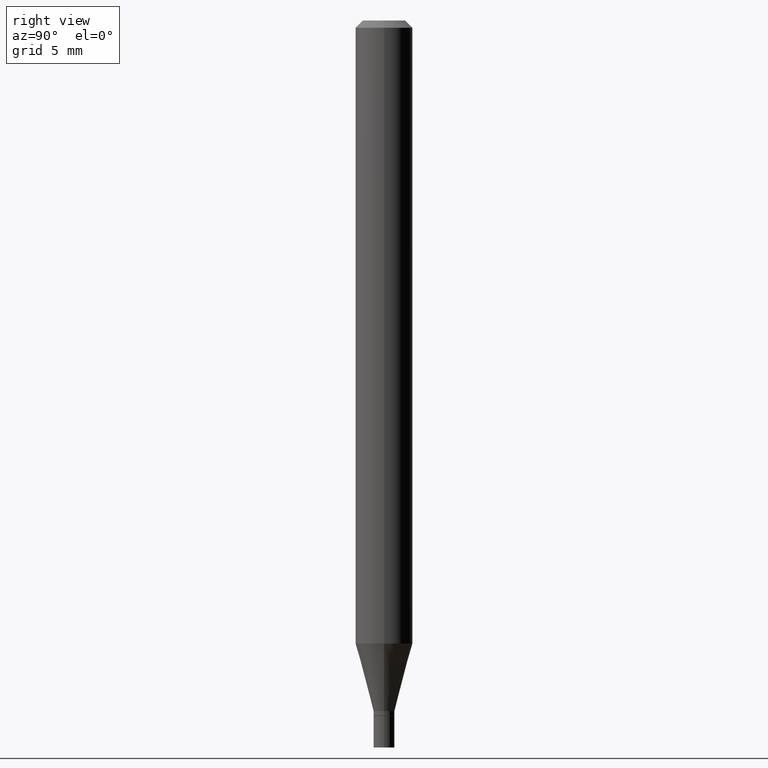
[diagram: clean part render]
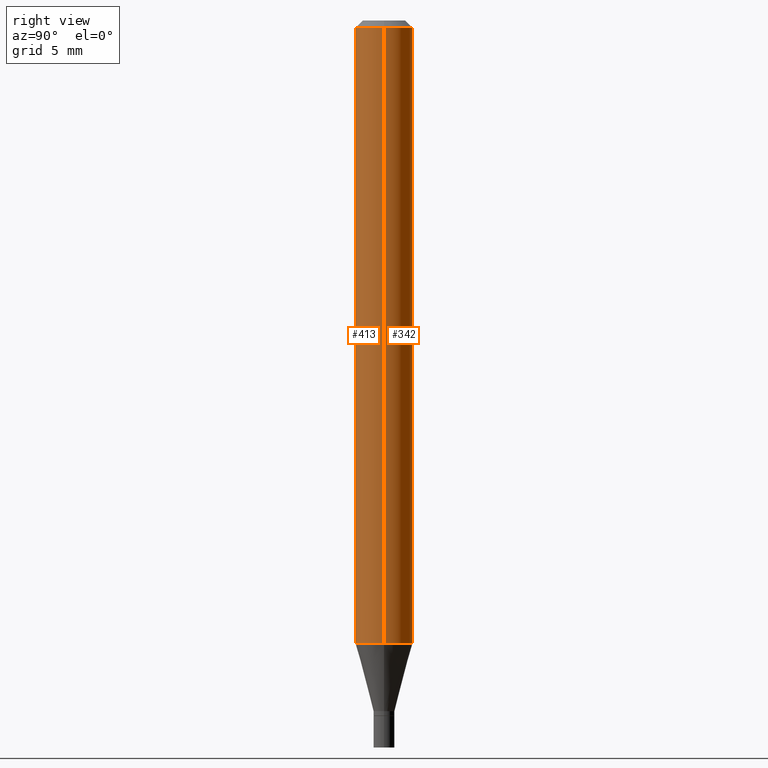
[diagram: same view with one multi-face feature highlighted, each face labeled with its STEP entity id]
A machine part, right view. The highlighted faces form ONE feature: a constant-radius fillet chain: 2 tangent blend faces with common blend radius 1.4999 mm. The faces share edges in the B-rep.
Their STEP definitions:
[1] entity #342 (Cylinder):
#8 = EDGE_CURVE ( 'NONE', #136, #305, #292, .T. ) ;
#10 = ORIENTED_EDGE ( 'NONE', *, *, #8, .F. ) ;
#16 = VECTOR ( 'NONE', #145, 39.37007874015748143 ) ;
#52 = DIRECTION ( 'NONE',  ( 1.000000000000000000, -6.982962677686266711E-15, 0.000000000000000000 ) ) ;
#54 = DIRECTION ( 'NONE',  ( -2.445468806185136877E-29, 3.491481338843145188E-15, 1.000000000000000000 ) ) ;
#61 = CIRCLE ( 'NONE', #319, 0.05904999999999999832 ) ;
#63 = CYLINDRICAL_SURFACE ( 'NONE', #173, 0.05904999999999999832 ) ;
#73 = EDGE_CURVE ( 'NONE', #227, #305, #78, .T. ) ;
#77 = EDGE_CURVE ( 'NONE', #364, #136, #230, .T. ) ;
#78 = LINE ( 'NONE', #371, #414 ) ;
#83 = EDGE_CURVE ( 'NONE', #364, #227, #61, .T. ) ;
#84 = CARTESIAN_POINT ( 'NONE',  ( -0.05904999999999999832, -1.850622864971215216E-15, -0.01499999999999999944 ) ) ;
#92 = ORIENTED_EDGE ( 'NONE', *, *, #83, .T. ) ;
#121 = EDGE_LOOP ( 'NONE', ( #92, #165, #10, #397 ) ) ;
#136 = VERTEX_POINT ( 'NONE', #211 ) ;
#145 = DIRECTION ( 'NONE',  ( -2.445468806185136877E-29, 3.491481338843145188E-15, 1.000000000000000000 ) ) ;
#165 = ORIENTED_EDGE ( 'NONE', *, *, #73, .T. ) ;
#171 = CARTESIAN_POINT ( 'NONE',  ( 0.000000000000000000, 0.000000000000000000, 0.000000000000000000 ) ) ;
#173 = AXIS2_PLACEMENT_3D ( 'NONE', #171, #460, #176 ) ;
#175 = DIRECTION ( 'NONE',  ( 1.000000000000000000, -6.982962677686273021E-15, 0.000000000000000000 ) ) ;
#176 = DIRECTION ( 'NONE',  ( 1.000000000000000000, -6.982962677686266711E-15, 4.876176775795936353E-29 ) ) ;
#190 = CARTESIAN_POINT ( 'NONE',  ( -0.05904999999999999832, -4.068448995326122451E-15, -1.285421299796924099 ) ) ;
#211 = CARTESIAN_POINT ( 'NONE',  ( 0.05904999999999999832, -4.647161662000212105E-16, -0.01499999999999999944 ) ) ;
#215 = CARTESIAN_POINT ( 'NONE',  ( 0.05904999999999999832, -4.900368426909834498E-15, -1.285421299796924099 ) ) ;
#227 = VERTEX_POINT ( 'NONE', #190 ) ;
#230 = LINE ( 'NONE', #328, #16 ) ;
#292 = CIRCLE ( 'NONE', #373, 0.05904999999999999832 ) ;
#295 = CARTESIAN_POINT ( 'NONE',  ( 3.143457691459330650E-29, -4.488024480792461155E-15, -1.285421299796924099 ) ) ;
#305 = VERTEX_POINT ( 'NONE', #84 ) ;
#319 = AXIS2_PLACEMENT_3D ( 'NONE', #295, #354, #175 ) ;
#328 = CARTESIAN_POINT ( 'NONE',  ( 0.05904999999999999832, -4.123439461173740327E-16, 2.879382386107500220E-30 ) ) ;
#342 = ADVANCED_FACE ( 'NONE', ( #384 ), #63, .T. ) ;
#354 = DIRECTION ( 'NONE',  ( -2.445468806185136597E-29, 3.491481338843145583E-15, 1.000000000000000000 ) ) ;
#364 = VERTEX_POINT ( 'NONE', #215 ) ;
#371 = CARTESIAN_POINT ( 'NONE',  ( -0.05904999999999999832, 4.195754854663391478E-16, -2.904631170795521892E-30 ) ) ;
#373 = AXIS2_PLACEMENT_3D ( 'NONE', #406, #445, #52 ) ;
#384 = FACE_OUTER_BOUND ( 'NONE', #121, .T. ) ;
#397 = ORIENTED_EDGE ( 'NONE', *, *, #77, .F. ) ;
#406 = CARTESIAN_POINT ( 'NONE',  ( 3.668203209277705088E-31, -5.237222008264718399E-17, -0.01499999999999999944 ) ) ;
#414 = VECTOR ( 'NONE', #54, 39.37007874015748143 ) ;
#445 = DIRECTION ( 'NONE',  ( -2.445468806185136597E-29, 3.491481338843145583E-15, 1.000000000000000000 ) ) ;
#460 = DIRECTION ( 'NONE',  ( -2.445468806185136597E-29, 3.491481338843145583E-15, 1.000000000000000000 ) ) ;
[2] entity #413 (Cylinder):
#15 = CARTESIAN_POINT ( 'NONE',  ( 3.143457691459330650E-29, -4.488024480792461155E-15, -1.285421299796924099 ) ) ;
#16 = VECTOR ( 'NONE', #145, 39.37007874015748143 ) ;
#28 = EDGE_CURVE ( 'NONE', #305, #136, #246, .T. ) ;
#54 = DIRECTION ( 'NONE',  ( -2.445468806185136877E-29, 3.491481338843145188E-15, 1.000000000000000000 ) ) ;
#73 = EDGE_CURVE ( 'NONE', #227, #305, #78, .T. ) ;
#77 = EDGE_CURVE ( 'NONE', #364, #136, #230, .T. ) ;
#78 = LINE ( 'NONE', #371, #414 ) ;
#82 = ORIENTED_EDGE ( 'NONE', *, *, #77, .T. ) ;
#84 = CARTESIAN_POINT ( 'NONE',  ( -0.05904999999999999832, -1.850622864971215216E-15, -0.01499999999999999944 ) ) ;
#90 = CIRCLE ( 'NONE', #331, 0.05904999999999999832 ) ;
#96 = CYLINDRICAL_SURFACE ( 'NONE', #452, 0.05904999999999999832 ) ;
#136 = VERTEX_POINT ( 'NONE', #211 ) ;
#142 = DIRECTION ( 'NONE',  ( -2.445468806185136597E-29, 3.491481338843145583E-15, 1.000000000000000000 ) ) ;
#145 = DIRECTION ( 'NONE',  ( -2.445468806185136877E-29, 3.491481338843145188E-15, 1.000000000000000000 ) ) ;
#187 = FACE_OUTER_BOUND ( 'NONE', #377, .T. ) ;
#189 = CARTESIAN_POINT ( 'NONE',  ( 3.668203209277705088E-31, -5.237222008264718399E-17, -0.01499999999999999944 ) ) ;
#190 = CARTESIAN_POINT ( 'NONE',  ( -0.05904999999999999832, -4.068448995326122451E-15, -1.285421299796924099 ) ) ;
#199 = ORIENTED_EDGE ( 'NONE', *, *, #28, .F. ) ;
#205 = AXIS2_PLACEMENT_3D ( 'NONE', #189, #392, #228 ) ;
#211 = CARTESIAN_POINT ( 'NONE',  ( 0.05904999999999999832, -4.647161662000212105E-16, -0.01499999999999999944 ) ) ;
#215 = CARTESIAN_POINT ( 'NONE',  ( 0.05904999999999999832, -4.900368426909834498E-15, -1.285421299796924099 ) ) ;
#221 = CARTESIAN_POINT ( 'NONE',  ( 0.000000000000000000, 0.000000000000000000, 0.000000000000000000 ) ) ;
#227 = VERTEX_POINT ( 'NONE', #190 ) ;
#228 = DIRECTION ( 'NONE',  ( 1.000000000000000000, -6.982962677686266711E-15, 0.000000000000000000 ) ) ;
#230 = LINE ( 'NONE', #328, #16 ) ;
#246 = CIRCLE ( 'NONE', #205, 0.05904999999999999832 ) ;
#258 = EDGE_CURVE ( 'NONE', #227, #364, #90, .T. ) ;
#298 = DIRECTION ( 'NONE',  ( 1.000000000000000000, -6.982962677686273021E-15, 0.000000000000000000 ) ) ;
#305 = VERTEX_POINT ( 'NONE', #84 ) ;
#324 = DIRECTION ( 'NONE',  ( 1.000000000000000000, -6.982962677686266711E-15, 4.876176775795936353E-29 ) ) ;
#325 = ORIENTED_EDGE ( 'NONE', *, *, #73, .F. ) ;
#327 = DIRECTION ( 'NONE',  ( -2.445468806185136597E-29, 3.491481338843145583E-15, 1.000000000000000000 ) ) ;
#328 = CARTESIAN_POINT ( 'NONE',  ( 0.05904999999999999832, -4.123439461173740327E-16, 2.879382386107500220E-30 ) ) ;
#331 = AXIS2_PLACEMENT_3D ( 'NONE', #15, #142, #298 ) ;
#355 = ORIENTED_EDGE ( 'NONE', *, *, #258, .T. ) ;
#364 = VERTEX_POINT ( 'NONE', #215 ) ;
#371 = CARTESIAN_POINT ( 'NONE',  ( -0.05904999999999999832, 4.195754854663391478E-16, -2.904631170795521892E-30 ) ) ;
#377 = EDGE_LOOP ( 'NONE', ( #325, #355, #82, #199 ) ) ;
#392 = DIRECTION ( 'NONE',  ( -2.445468806185136597E-29, 3.491481338843145583E-15, 1.000000000000000000 ) ) ;
#413 = ADVANCED_FACE ( 'NONE', ( #187 ), #96, .T. ) ;
#414 = VECTOR ( 'NONE', #54, 39.37007874015748143 ) ;
#452 = AXIS2_PLACEMENT_3D ( 'NONE', #221, #327, #324 ) ;